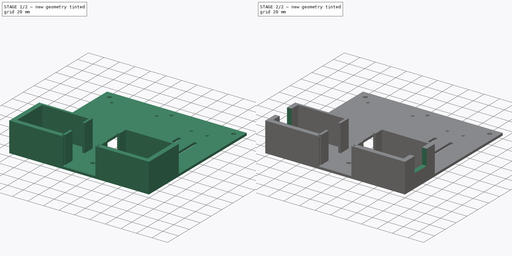
[diagram: build sequence overview — one tinted view per stage of 2, left to right]
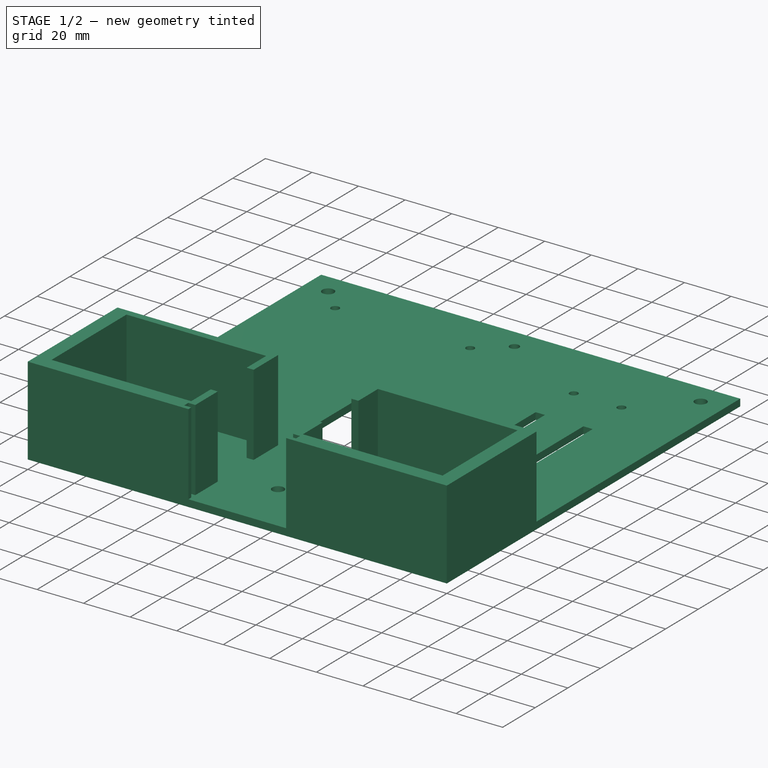
[diagram: stage 1 of 2 — iso view after this stage's code; geometry added in this stage tinted green]
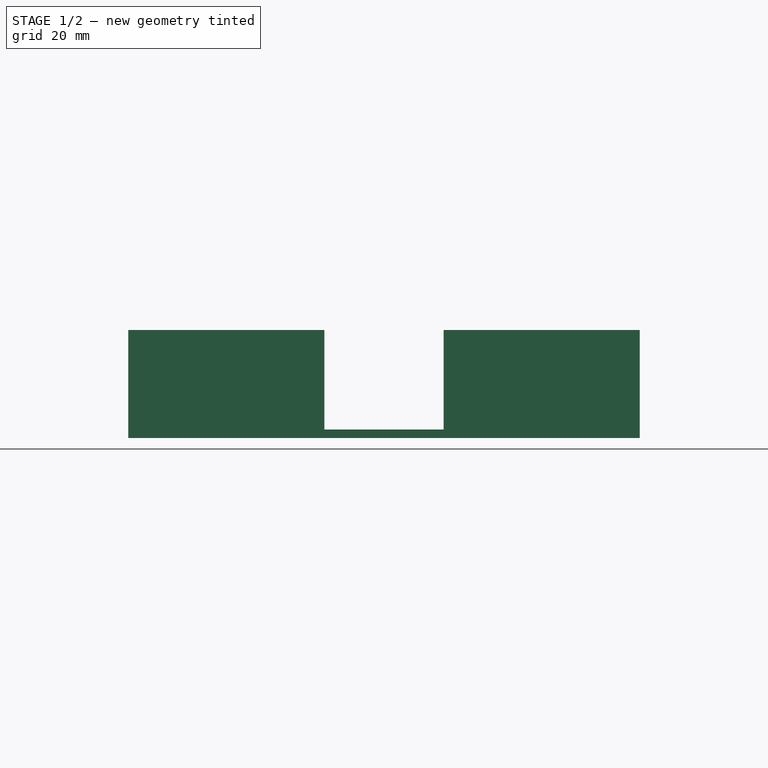
[diagram: stage 1 of 2 — front view after this stage's code; geometry added in this stage tinted green]
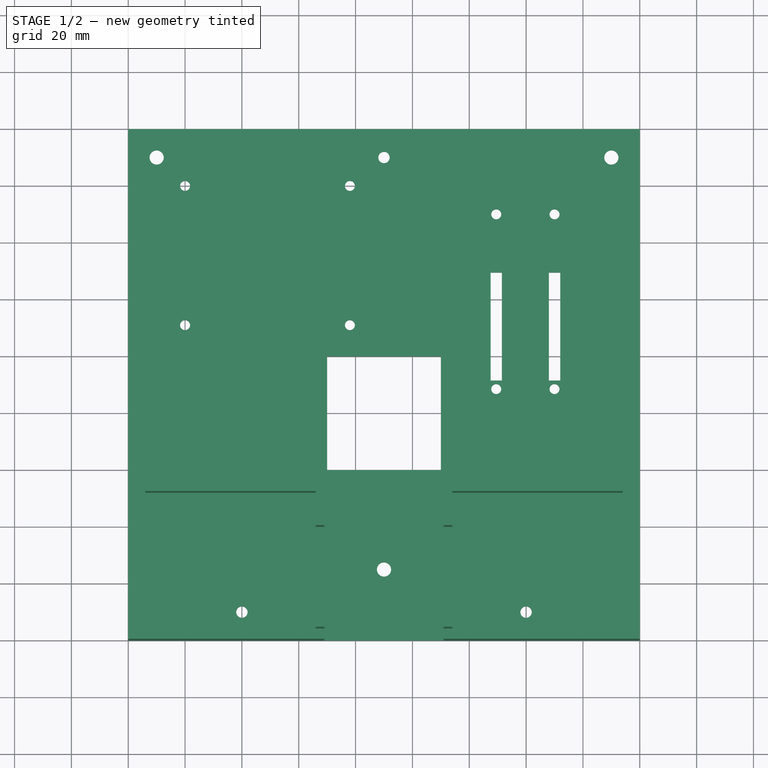
[diagram: stage 1 of 2 — top view after this stage's code; geometry added in this stage tinted green]
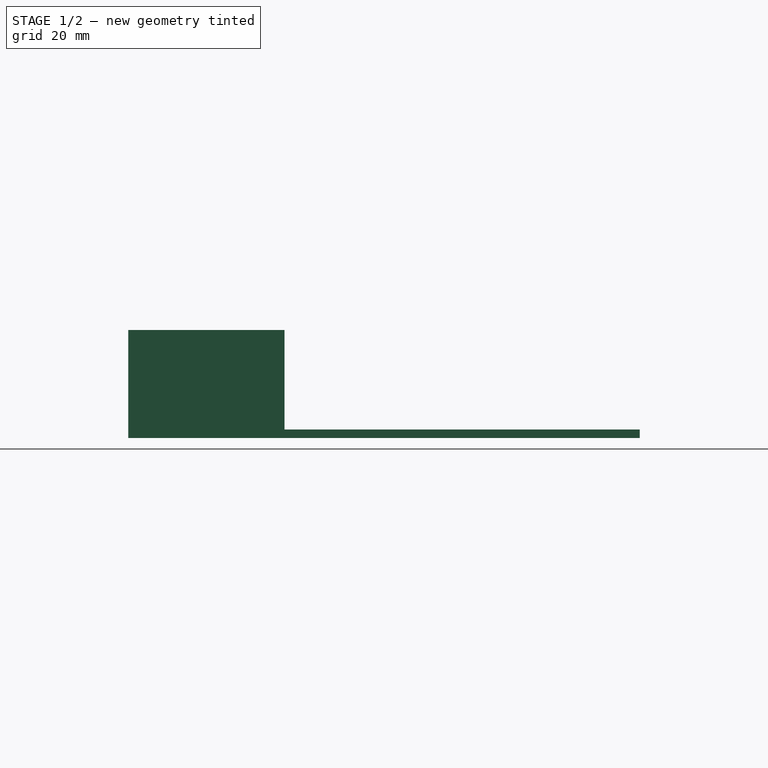
[diagram: stage 1 of 2 — right view after this stage's code; geometry added in this stage tinted green]
FCSTD DOCUMENT  (FreeCAD 0.20R29603 (Git))
Label: ThesisMiddlePlate V3
License: All rights reserved
LicenseURL: http://en.wikipedia.org/wiki/All_rights_reserved
objects: Sketcher::SketchObject×3, PartDesign::Pad×2, PartDesign::Pocket×1, PartDesign::Body×1
note: 10 computed .brp shape members not serialized (recipe doc carries the construction recipe); baked Part::Feature solids carry a one-line shape summary decoded from their .brp

FEATURE [Sketcher::SketchObject] Sketch
  FullyConstrained = true
  MapMode = 5
  Support = -> [XY_Plane]
  sketch-geometry (30):
    g0: LineSegment StartX=0 StartY=0 StartZ=0 EndX=180 EndY=0 EndZ=0
    g1: LineSegment StartX=180 StartY=0 StartZ=0 EndX=180 EndY=180 EndZ=0
    g2: LineSegment StartX=180 StartY=180 StartZ=0 EndX=0 EndY=180 EndZ=0
    g3: LineSegment StartX=0 StartY=180 StartZ=0 EndX=0 EndY=0 EndZ=0
    g4: Circle CenterX=40 CenterY=10 CenterZ=0 NormalX=0 NormalY=0 NormalZ=1 AngleXU=0 Radius=2
    g5: Circle CenterX=140 CenterY=10 CenterZ=0 NormalX=0 NormalY=0 NormalZ=1 AngleXU=0 Radius=2
    g6: Circle CenterX=90 CenterY=170 CenterZ=0 NormalX=0 NormalY=0 NormalZ=1 AngleXU=0 Radius=2
    g7: LineSegment StartX=70 StartY=100 StartZ=0 EndX=110 EndY=100 EndZ=0
    g8: LineSegment StartX=110 StartY=100 StartZ=0 EndX=110 EndY=60 EndZ=0
    g9: LineSegment StartX=110 StartY=60 StartZ=0 EndX=70 EndY=60 EndZ=0
    g10: LineSegment StartX=70 StartY=60 StartZ=0 EndX=70 EndY=100 EndZ=0
    g11: Circle CenterX=20 CenterY=160 CenterZ=0 NormalX=0 NormalY=0 NormalZ=1 AngleXU=0 Radius=1.75
    g12: Circle CenterX=78 CenterY=160 CenterZ=0 NormalX=0 NormalY=0 NormalZ=1 AngleXU=0 Radius=1.75
    g13: Circle CenterX=20 CenterY=111 CenterZ=0 NormalX=0 NormalY=0 NormalZ=1 AngleXU=0 Radius=1.75
    g14: Circle CenterX=78 CenterY=111 CenterZ=0 NormalX=0 NormalY=0 NormalZ=1 AngleXU=0 Radius=1.75
    g15: Circle CenterX=90 CenterY=25 CenterZ=0 NormalX=0 NormalY=0 NormalZ=1 AngleXU=0 Radius=2.5
    g16: Circle CenterX=10 CenterY=170 CenterZ=0 NormalX=0 NormalY=0 NormalZ=1 AngleXU=0 Radius=2.5
    g17: Circle CenterX=170 CenterY=170 CenterZ=0 NormalX=0 NormalY=0 NormalZ=1 AngleXU=0 Radius=2.5
    g18: Circle CenterX=129.5 CenterY=150 CenterZ=0 NormalX=0 NormalY=0 NormalZ=1 AngleXU=0 Radius=1.75
    g19: Circle CenterX=150 CenterY=150 CenterZ=0 NormalX=0 NormalY=0 NormalZ=1 AngleXU=0 Radius=1.75
    g20: Circle CenterX=129.5 CenterY=88.5 CenterZ=0 NormalX=0 NormalY=0 NormalZ=1 AngleXU=0 Radius=1.75
    g21: Circle CenterX=150 CenterY=88.5 CenterZ=0 NormalX=0 NormalY=0 NormalZ=1 AngleXU=0 Radius=1.75
    g22: LineSegment StartX=127.5 StartY=129.5 StartZ=0 EndX=131.5 EndY=129.5 EndZ=0
    g23: LineSegment StartX=131.5 StartY=129.5 StartZ=0 EndX=131.5 EndY=91.5 EndZ=0
    g24: LineSegment StartX=131.5 StartY=91.5 StartZ=0 EndX=127.5 EndY=91.5 EndZ=0
    g25: LineSegment StartX=127.5 StartY=91.5 StartZ=0 EndX=127.5 EndY=129.5 EndZ=0
    g26: LineSegment StartX=148 StartY=129.5 StartZ=0 EndX=152 EndY=129.5 EndZ=0
    g27: LineSegment StartX=152 StartY=129.5 StartZ=0 EndX=152 EndY=91.5 EndZ=0
    g28: LineSegment StartX=152 StartY=91.5 StartZ=0 EndX=148 EndY=91.5 EndZ=0
    g29: LineSegment StartX=148 StartY=91.5 StartZ=0 EndX=148 EndY=129.5 EndZ=0
  constraints (89):
    c: Coincident(g0,g1)
    c: Coincident(g1,g2)
    c: Coincident(g2,g3)
    c: Coincident(g3,g0)
    c: Horizontal(g0)
    c: Horizontal(g2)
    c: Vertical(g1)
    c: Vertical(g3)
    c: Coincident(g0,g-1)
    c: DistanceY(g3,g3) = 180
    c: DistanceX(g0,g0) = 180
    c: Diameter(g4) = 4
    c: Diameter(g5) = 4
    c: Diameter(g6) = 4
    c: DistanceY(g4,g5) = 0
    c: DistanceY(g0,g4) = 10
    c: DistanceX(g0,g4) = 40
    c: DistanceX(g5,g0) = 40
    c: DistanceX(g6,g1) = 90
    c: DistanceY(g6,g1) = 10
    c: Coincident(g7,g8)
    c: Coincident(g8,g9)
    c: Coincident(g9,g10)
    c: Coincident(g10,g7)
    c: Horizontal(g7)
    c: Horizontal(g9)
    c: Vertical(g8)
    c: Vertical(g10)
    c: DistanceX(g7,g7) = 40
    c: DistanceY(g8,g8) = 40
    c: DistanceX(g2,g7) = 70
    c: DistanceY(g0,g9) = 60
    c: Diameter(g11) = 3.5
    c: Diameter(g12) = 3.5
    c: Diameter(g13) = 3.5
    c: Diameter(g14) = 3.5
    c: DistanceX(g13,g11) = 0
    c: DistanceX(g14,g12) = 0
    c: DistanceX(g2,g11) = 20
    c: DistanceX(g11,g12) = 58
    c: DistanceY(g11,g12) = 0
    c: DistanceY(g14,g13) = 0
    c: DistanceY(g11,g2) = 20
    c: DistanceY(g13,g11) = 49
    c: Diameter(g15) = 5
    c: DistanceX(g0,g15) = 90
    c: DistanceY(g0,g15) = 25
    c: DistanceY(g6,g17) = 0
    c: DistanceY(g6,g16) = 0
    c: Diameter(g16) = 5
    c: Diameter(g17) = 5
    c: DistanceX(g17,g1) = 10
    c: DistanceX(g2,g16) = 10
    c: Diameter(g18) = 3.5
    c: Diameter(g19) = 3.5
    c: Diameter(g20) = 3.5
    c: Diameter(g21) = 3.5
    c: DistanceX(g20,g18) = 0
    c: DistanceX(g19,g21) = 0
    c: DistanceX(g20,g21) = 20.5
    c: DistanceY(g18,g19) = 0
    c: DistanceY(g20,g21) = 0
    c: DistanceY(g20,g18) = 61.5
    c: DistanceY(g19,g1) = 30
    c: DistanceX(g19,g1) = 30
    c: Coincident(g22,g23)
    c: Coincident(g23,g24)
    c: Coincident(g24,g25)
    c: Coincident(g25,g22)
    c: Horizontal(g22)
    c: Horizontal(g24)
    c: Vertical(g23)
    c: Vertical(g25)
    c: Coincident(g26,g27)
    c: Coincident(g27,g28)
    c: Coincident(g28,g29)
    c: Coincident(g29,g26)
    c: Horizontal(g26)
    c: Horizontal(g28)
    c: Vertical(g27)
    c: Vertical(g29)
    c: DistanceY(g25,g25) = 38
    c: DistanceY(g29,g29) = 38
    c: DistanceX(g22,g22) = 4
    c: DistanceX(g26,g26) = 4
    c: DistanceY(g20,g24) = 3
    c: DistanceY(g21,g28) = 3
    c: DistanceX(g20,g23) = 2
    c: DistanceX(g21,g27) = 2
FEATURE [PartDesign::Pad] Pad
  Direction = (0,0,1)
  Length = 3
  Length2 = 10
  Profile = -> Sketch
  ReferenceAxis = -> Sketch [N_Axis]
  Type = 0
FEATURE [Sketcher::SketchObject] Sketch001
  ExternalGeometry = -> [Pad]
  FullyConstrained = true
  MapMode = 5
  Placement = pos=(0,0,3) rot=(0,0,1;0rad)
  sketch-geometry (32):
    g0: LineSegment StartX=0 StartY=0 StartZ=0 EndX=69 EndY=0 EndZ=0
    g1: LineSegment StartX=69 StartY=0 StartZ=0 EndX=69 EndY=1.75 EndZ=0
    g2: LineSegment StartX=69 StartY=1.75 StartZ=0 EndX=66 EndY=1.75 EndZ=0
    g3: LineSegment StartX=66 StartY=1.75 StartZ=0 EndX=66 EndY=4.25 EndZ=0
    g4: LineSegment StartX=66 StartY=4.25 StartZ=0 EndX=69 EndY=4.25 EndZ=0
    g5: LineSegment StartX=6 StartY=6 StartZ=0 EndX=6 EndY=52 EndZ=0
    g6: LineSegment StartX=6 StartY=52 StartZ=0 EndX=66 EndY=52 EndZ=0
    g7: LineSegment StartX=66 StartY=52 StartZ=0 EndX=66 EndY=40 EndZ=0
    g8: LineSegment StartX=66 StartY=40 StartZ=0 EndX=69 EndY=40 EndZ=0
    g9: LineSegment StartX=69 StartY=40 StartZ=0 EndX=69 EndY=55 EndZ=0
    g10: LineSegment StartX=0 StartY=0 StartZ=0 EndX=0 EndY=55 EndZ=0
    g11: LineSegment StartX=0 StartY=55 StartZ=0 EndX=69 EndY=55 EndZ=0
    g12: LineSegment StartX=6 StartY=6 StartZ=0 EndX=66 EndY=6 EndZ=0
    g13: LineSegment StartX=66 StartY=6 StartZ=0 EndX=66 EndY=18 EndZ=0
    g14: LineSegment StartX=66 StartY=18 StartZ=0 EndX=69 EndY=18 EndZ=0
    g15: LineSegment StartX=69 StartY=18 StartZ=0 EndX=69 EndY=4.25 EndZ=0
    g16: LineSegment StartX=180 StartY=0 StartZ=0 EndX=111 EndY=0 EndZ=0
    g17: LineSegment StartX=111 StartY=0 StartZ=0 EndX=111 EndY=1.75 EndZ=0
    g18: LineSegment StartX=111 StartY=1.75 StartZ=0 EndX=114 EndY=1.75 EndZ=0
    g19: LineSegment StartX=114 StartY=1.75 StartZ=0 EndX=114 EndY=4.25 EndZ=0
    g20: LineSegment StartX=114 StartY=4.25 StartZ=0 EndX=111 EndY=4.25 EndZ=0
    g21: LineSegment StartX=111 StartY=4.25 StartZ=0 EndX=111 EndY=18 EndZ=0
    g22: LineSegment StartX=111 StartY=18 StartZ=0 EndX=114 EndY=18 EndZ=0
    g23: LineSegment StartX=114 StartY=18 StartZ=0 EndX=114 EndY=6 EndZ=0
    g24: LineSegment StartX=114 StartY=6 StartZ=0 EndX=174 EndY=6 EndZ=0
    g25: LineSegment StartX=174 StartY=6 StartZ=0 EndX=174 EndY=52 EndZ=0
    g26: LineSegment StartX=174 StartY=52 StartZ=0 EndX=114 EndY=52 EndZ=0
    g27: LineSegment StartX=114 StartY=52 StartZ=0 EndX=114 EndY=40 EndZ=0
    g28: LineSegment StartX=114 StartY=40 StartZ=0 EndX=111 EndY=40 EndZ=0
    g29: LineSegment StartX=111 StartY=40 StartZ=0 EndX=111 EndY=55 EndZ=0
    g30: LineSegment StartX=111 StartY=55 StartZ=0 EndX=180 EndY=55 EndZ=0
    g31: LineSegment StartX=180 StartY=55 StartZ=0 EndX=180 EndY=0 EndZ=0
  constraints (94):
    c: Coincident(g0,g-1)
    c: PointOnObject(g0,g-1)
    c: DistanceX(g0,g0) = 69
    c: Coincident(g1,g0)
    c: Vertical(g1)
    c: DistanceY(g1,g1) = 1.75
    c: Coincident(g2,g1)
    c: Horizontal(g2)
    c: Coincident(g3,g2)
    c: Vertical(g3)
    c: Coincident(g4,g3)
    c: Horizontal(g4)
    c: DistanceY(g3,g3) = 2.5
    c: DistanceX(g0,g5) = 6
    c: Vertical(g5)
    c: DistanceX(g2,g2) = 3
    c: DistanceX(g4,g4) = 3
    c: DistanceY(g5,g5) = 46
    c: Coincident(g6,g5)
    c: Horizontal(g6)
    c: Coincident(g7,g6)
    c: Vertical(g7)
    c: DistanceY(g7,g7) = 12
    c: Coincident(g8,g7)
    c: Horizontal(g8)
    c: Coincident(g9,g8)
    c: Vertical(g9)
    c: DistanceY(g6,g9) = 3
    c: DistanceX(g8,g8) = 3
    c: Coincident(g10,g0)
    c: PointOnObject(g10,g-2)
    c: Coincident(g11,g10)
    c: Coincident(g11,g9)
    c: Horizontal(g11)
    c: Coincident(g12,g5)
    c: Horizontal(g12)
    c: Coincident(g13,g12)
    c: Vertical(g13)
    c: Coincident(g14,g13)
    c: Horizontal(g14)
    c: Coincident(g15,g14)
    c: Coincident(g15,g4)
    c: Vertical(g15)
    c: DistanceX(g14,g14) = 3
    c: DistanceY(g4,g12) = 1.75
    c: DistanceY(g13,g13) = 12
    c: Coincident(g16,g-3)
    c: DistanceX(g16,g16) = 69
    c: Horizontal(g16)
    c: Coincident(g17,g16)
    c: Vertical(g17)
    c: Coincident(g18,g17)
    c: Horizontal(g18)
    c: Coincident(g19,g18)
    c: Vertical(g19)
    c: Coincident(g20,g19)
    c: Horizontal(g20)
    c: DistanceY(g17,g1) = 0
    c: DistanceY(g20,g4) = 0
    c: DistanceX(g18,g18) = 3
    c: DistanceX(g20,g17) = 0
    c: Coincident(g21,g20)
    c: Vertical(g21)
    c: Coincident(g22,g21)
    c: Horizontal(g22)
    c: Vertical(g23)
    c: DistanceY(g12,g23) = 0
    c: DistanceY(g14,g21) = 0
    c: DistanceX(g22,g22) = 3
    c: Coincident(g22,g23)
    c: Coincident(g24,g23)
    c: Horizontal(g24)
    c: Coincident(g25,g24)
    c: Vertical(g25)
    c: DistanceX(g24,g16) = 6
    c: Coincident(g26,g25)
    c: Horizontal(g26)
    c: DistanceX(g14,g8) = 0
    c: Coincident(g27,g26)
    c: Vertical(g27)
    c: Coincident(g28,g27)
    c: Horizontal(g28)
    c: Coincident(g29,g28)
    c: Vertical(g29)
    c: Coincident(g30,g29)
    c: PointOnObject(g30,g-3)
    c: Horizontal(g30)
    c: DistanceX(g21,g28) = 0
    c: DistanceX(g28,g28) = 3
    c: DistanceY(g26,g29) = 3
    c: DistanceY(g29,g9) = 0
    c: DistanceY(g28,g8) = 0
    c: Coincident(g31,g16)
    c: Coincident(g31,g30)
FEATURE [PartDesign::Pad] Pad001
  BaseFeature = -> Pad
  Direction = (0,0,1)
  Length = 35
  Length2 = 10
  Profile = -> Sketch001
  ReferenceAxis = -> Sketch001 [N_Axis]
  Type = 0
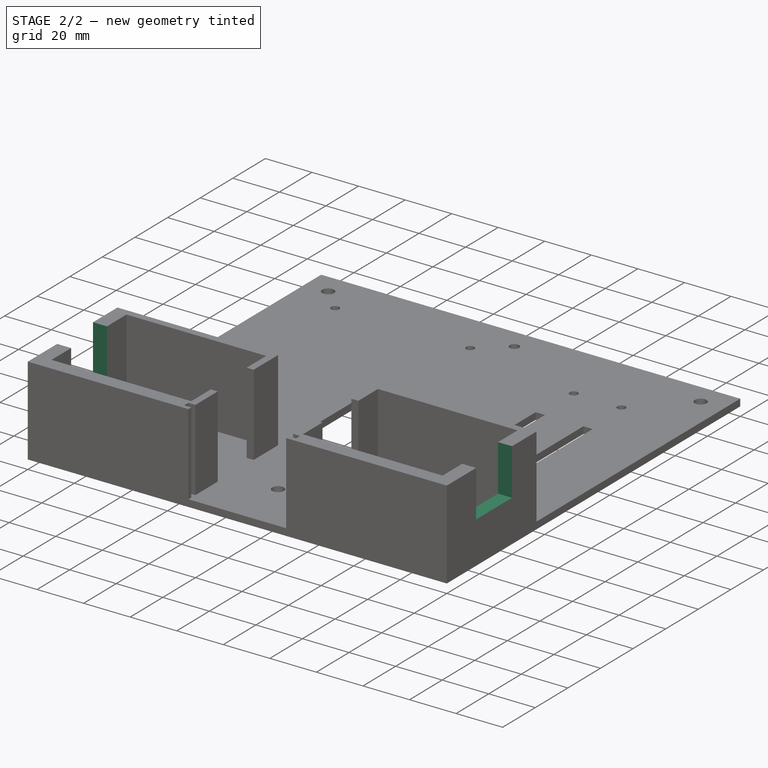
[diagram: stage 2 of 2 — iso view after this stage's code; geometry added in this stage tinted green]
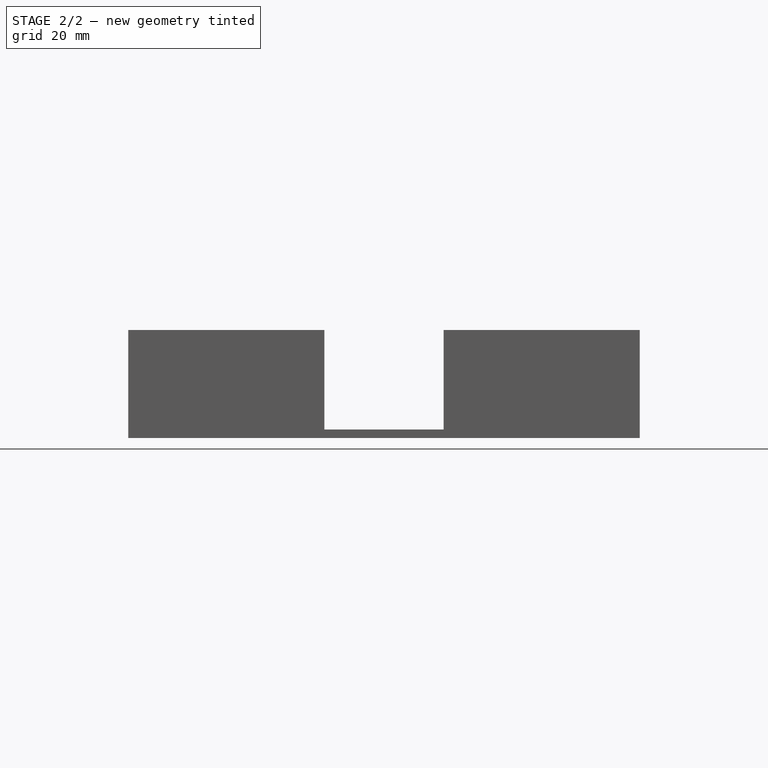
[diagram: stage 2 of 2 — front view after this stage's code; geometry added in this stage tinted green]
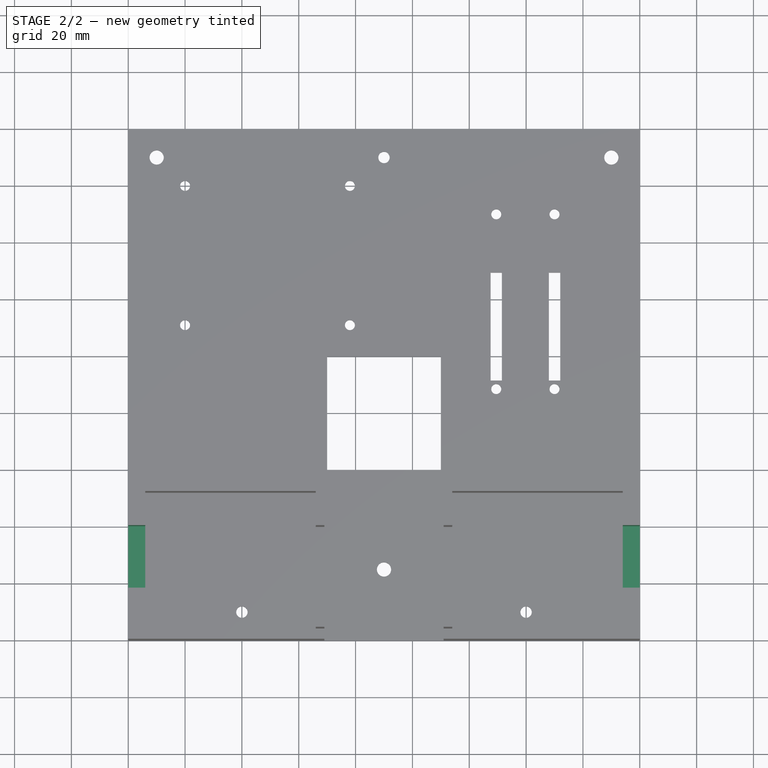
[diagram: stage 2 of 2 — top view after this stage's code; geometry added in this stage tinted green]
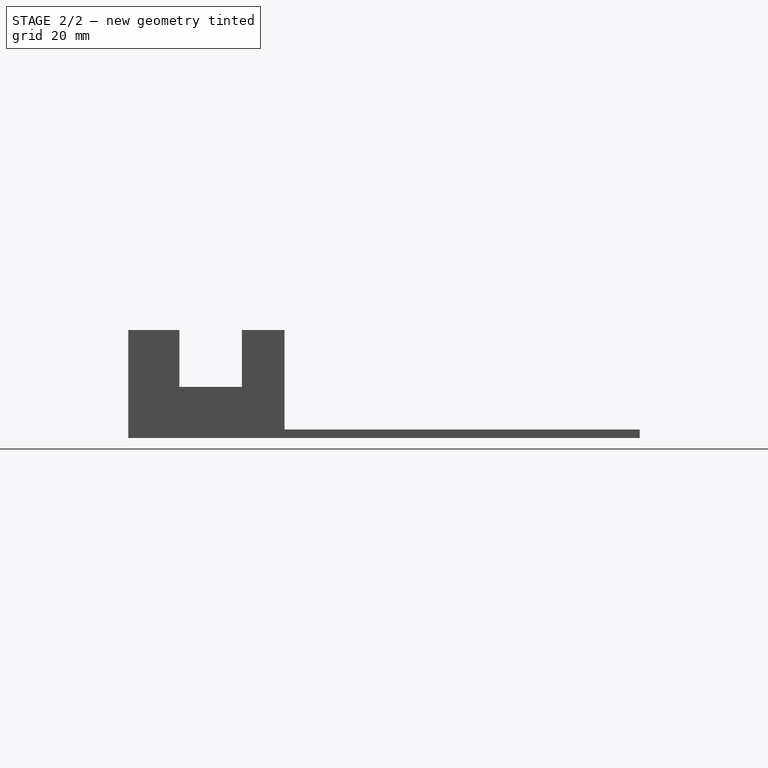
[diagram: stage 2 of 2 — right view after this stage's code; geometry added in this stage tinted green]
FEATURE [Sketcher::SketchObject] Sketch002
  ExternalGeometry = -> [Pad001]
  FullyConstrained = true
  MapMode = 5
  Placement = pos=(180,0,0) rot=(0.57735,0.57735,0.57735;2.0944rad)
  Support = -> [Pad001]
  sketch-geometry (4):
    g0: LineSegment StartX=18 StartY=38 StartZ=0 EndX=40 EndY=38 EndZ=0
    g1: LineSegment StartX=40 StartY=38 StartZ=0 EndX=40 EndY=18 EndZ=0
    g2: LineSegment StartX=40 StartY=18 StartZ=0 EndX=18 EndY=18 EndZ=0
    g3: LineSegment StartX=18 StartY=18 StartZ=0 EndX=18 EndY=38 EndZ=0
  constraints (12):
    c: Coincident(g0,g1)
    c: Coincident(g1,g2)
    c: Coincident(g2,g3)
    c: Coincident(g3,g0)
    c: Horizontal(g0)
    c: Horizontal(g2)
    c: Vertical(g1)
    c: Vertical(g3)
    c: DistanceX(g0,g-4) = 0
    c: DistanceX(g-3,g0) = 0
    c: DistanceY(g0,g-6) = 0
    c: DistanceY(g-5,g1) = 15
FEATURE [PartDesign::Pocket] Pocket
  BaseFeature = -> Pad001
  Direction = (-1,0,0)
  Length = 200
  Length2 = 5
  Profile = -> Sketch002
  ReferenceAxis = -> Sketch002 [N_Axis]
  Type = 0
FEATURE [PartDesign::Body] Body
  Group = -> [Sketch,Pad,Sketch001,Pad001,Sketch002,Pocket]
  Origin = -> Origin
  Tip = -> Pocket
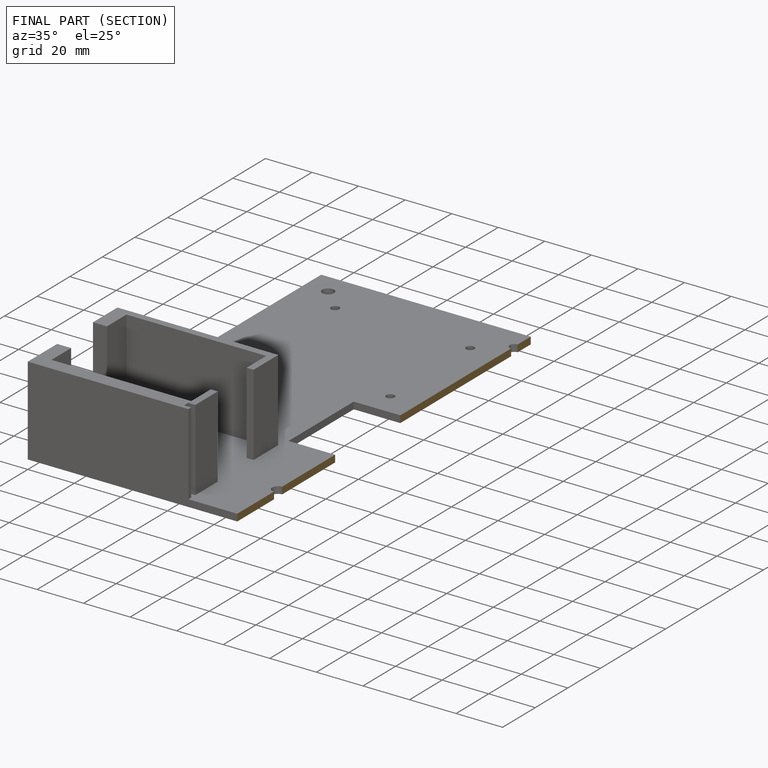
[diagram: finished part — half-section view (interior)]
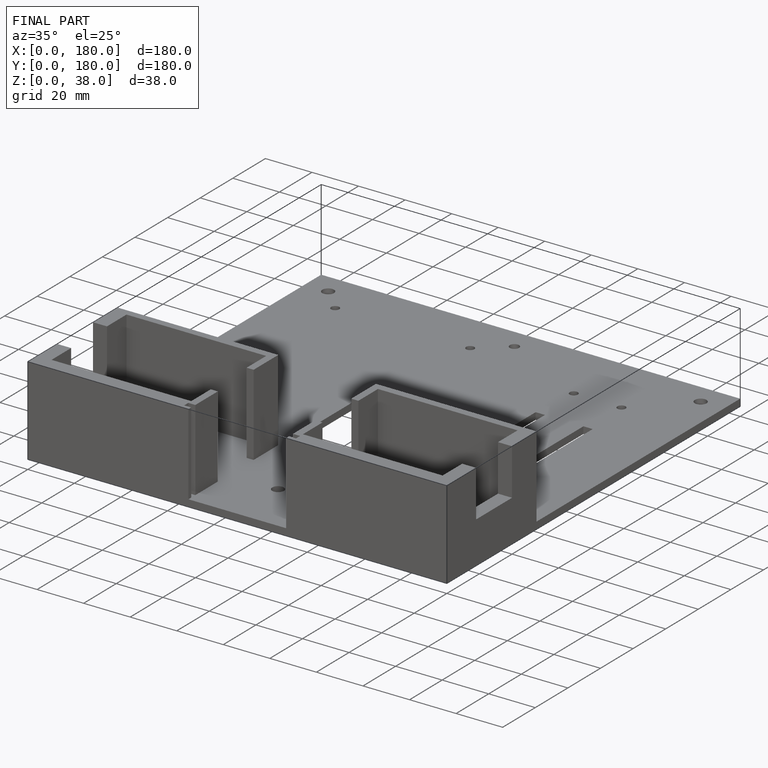
[diagram: finished part — iso view with bounding-box wireframe]
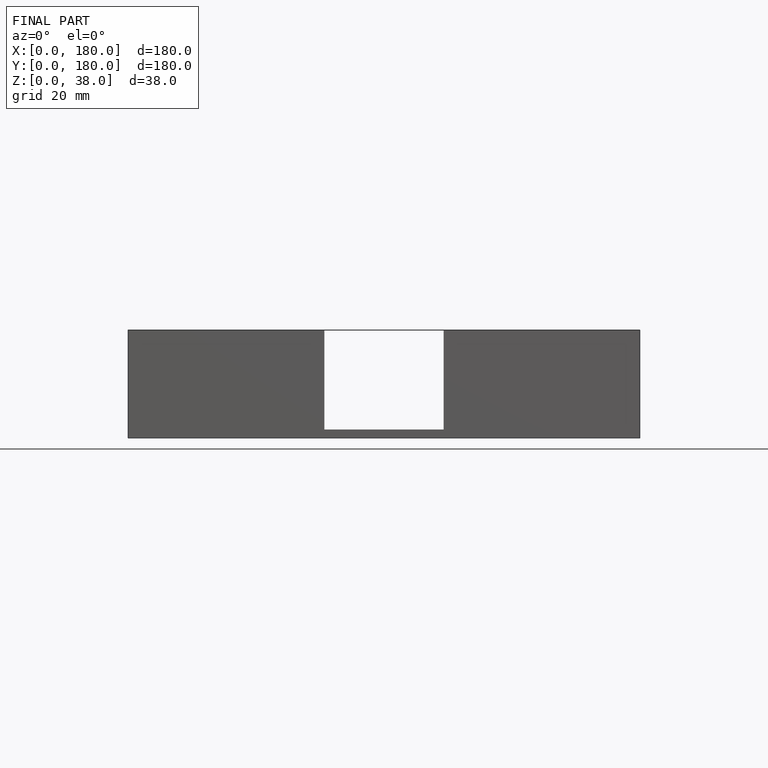
[diagram: finished part — front view with bounding-box wireframe]
